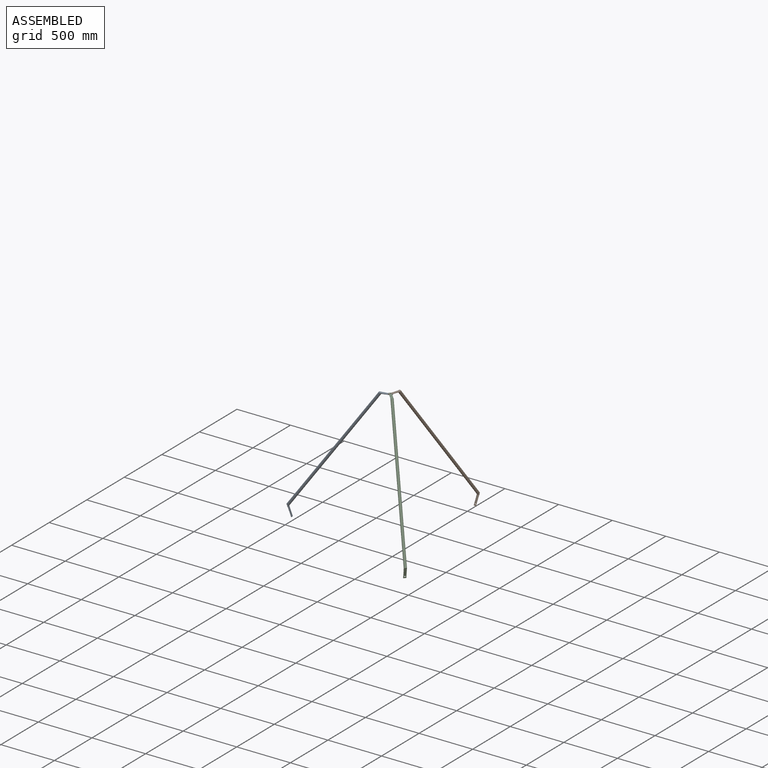
[diagram: assembled view]
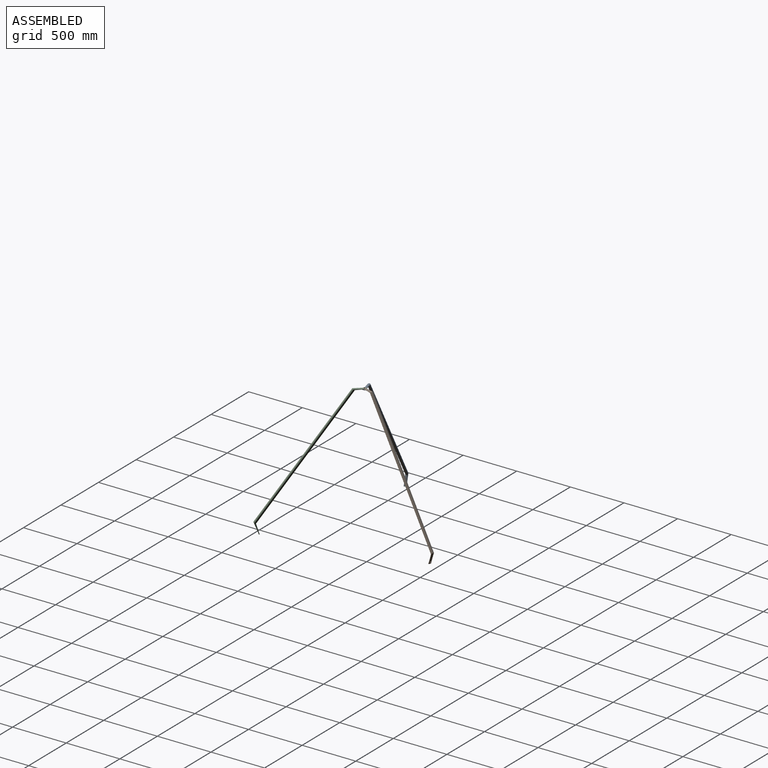
[diagram: assembled view, second angle]
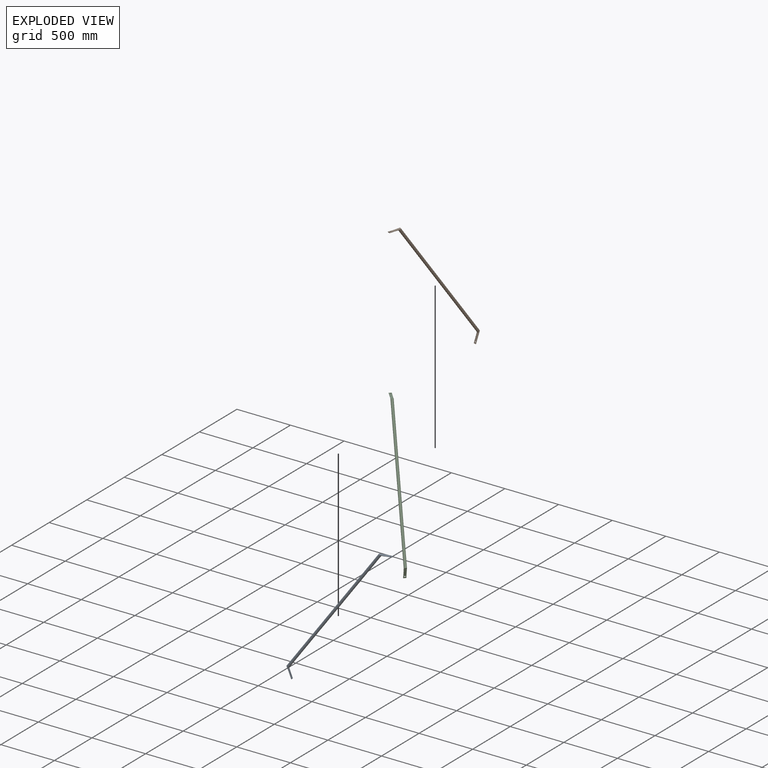
[diagram: exploded view]
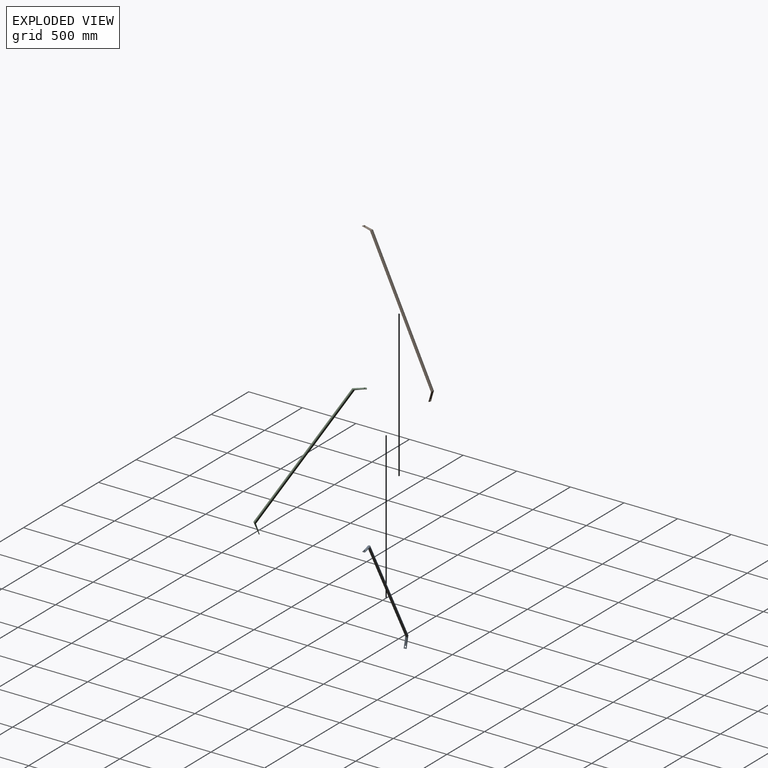
[diagram: exploded view, second angle]
ASSEMBLY  parts=3 mates=2
PART A: 7 faces, bbox 25.6x875x1183 mm
  f0: bspline ~111.79x25mm, area 5575.4mm2, adj f1,f2,f3
  f1: cylinder r=12.5mm len=1092.86mm, axis (0,0.58,0.82), area 103735.4mm2, adj f0,f4
  f2: plane 25.6x6.6mm, normal (0,1,0), area 142.3mm2, adj f0
  f3: cylinder r=6.5mm len=13mm, axis (0,0,-1), area 268.4mm2, adj f0
  f4: bspline ~104x46.89mm, area 5575.4mm2, adj f1,f5,f6
  f5: plane 25.6x6.26mm, normal (0,0.33,-0.94), area 142.3mm2, adj f4
  f6: cylinder r=6.5mm len=14.45mm, axis (0,0.94,0.33), area 268.4mm2, adj f4
PART B: same geometry as A
PART C: same geometry as A
PLACE A rot(axis=(0,0,-1),77.3deg) t=(22.05,764.75,340.75)mm
PLACE B rot(axis=(0,0,1),162.7deg) t=(616.02,1312.23,344.66)mm
PLACE C rot(axis=(0,0,1),42.7deg) t=(793.17,524.09,344.66)mm
MATE revolute B.f3 <-> A.f3  axis (0,0,-1) through (477.08,867.02,883.79)mm
MATE revolute C.f3 <-> A.f3  axis (0,0,-1) through (477.08,867.02,883.79)mm
